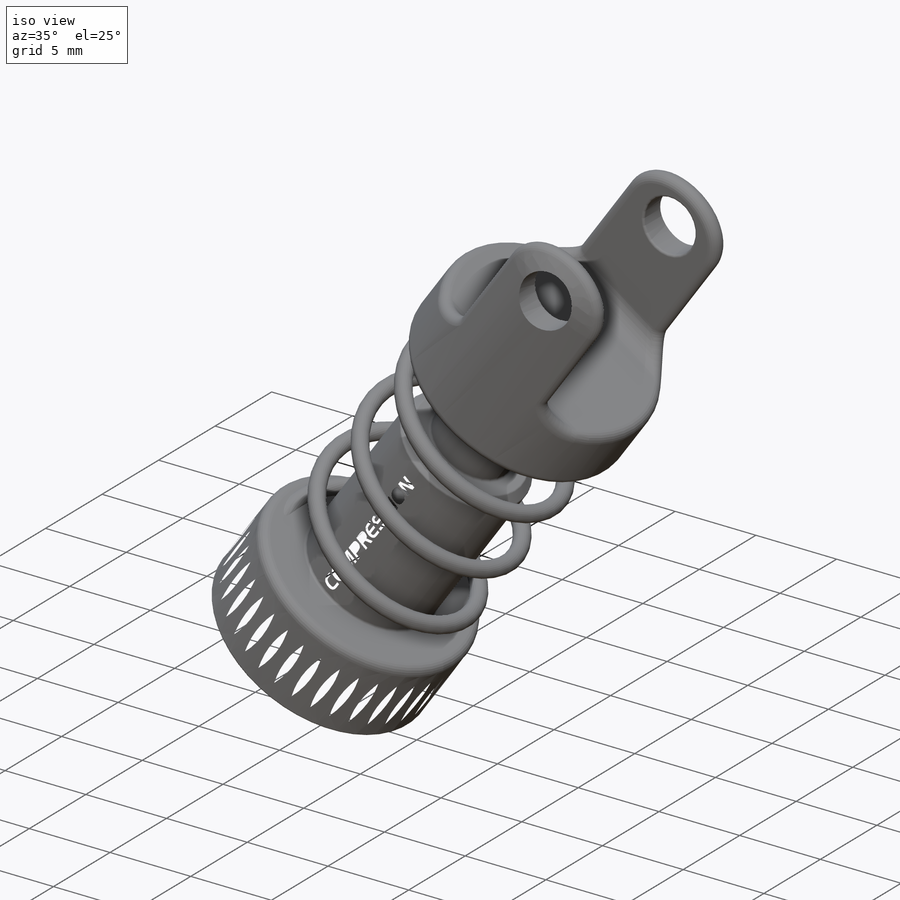
[diagram: iso view]
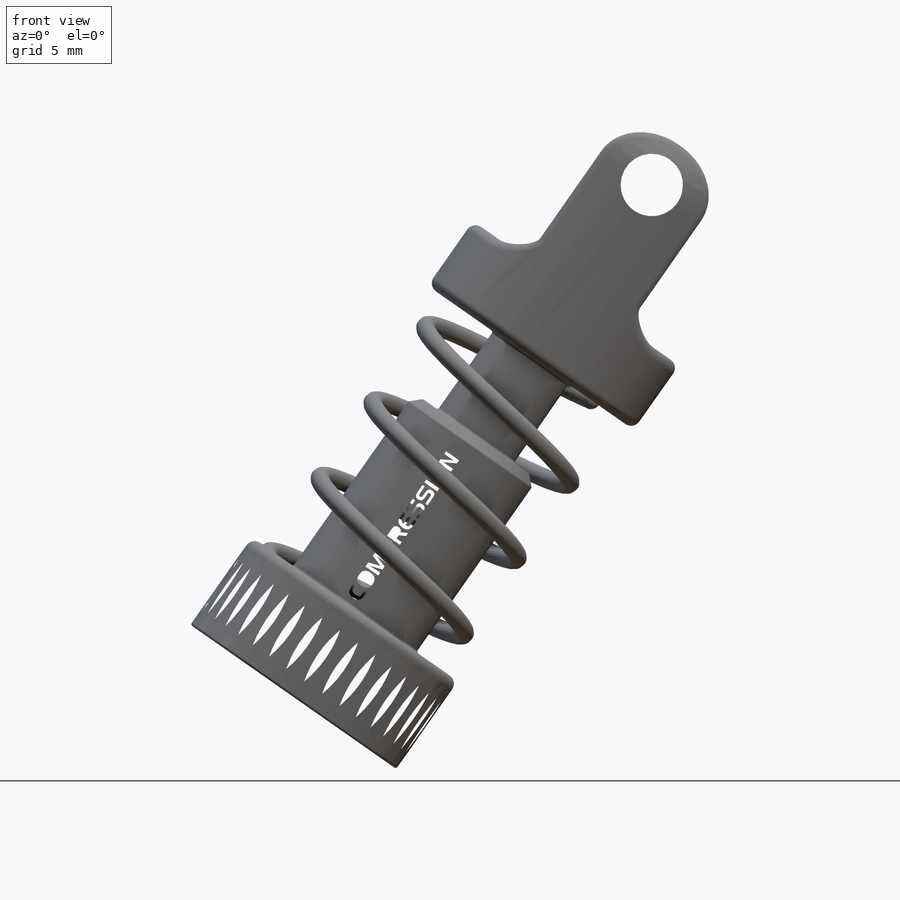
[diagram: front view]
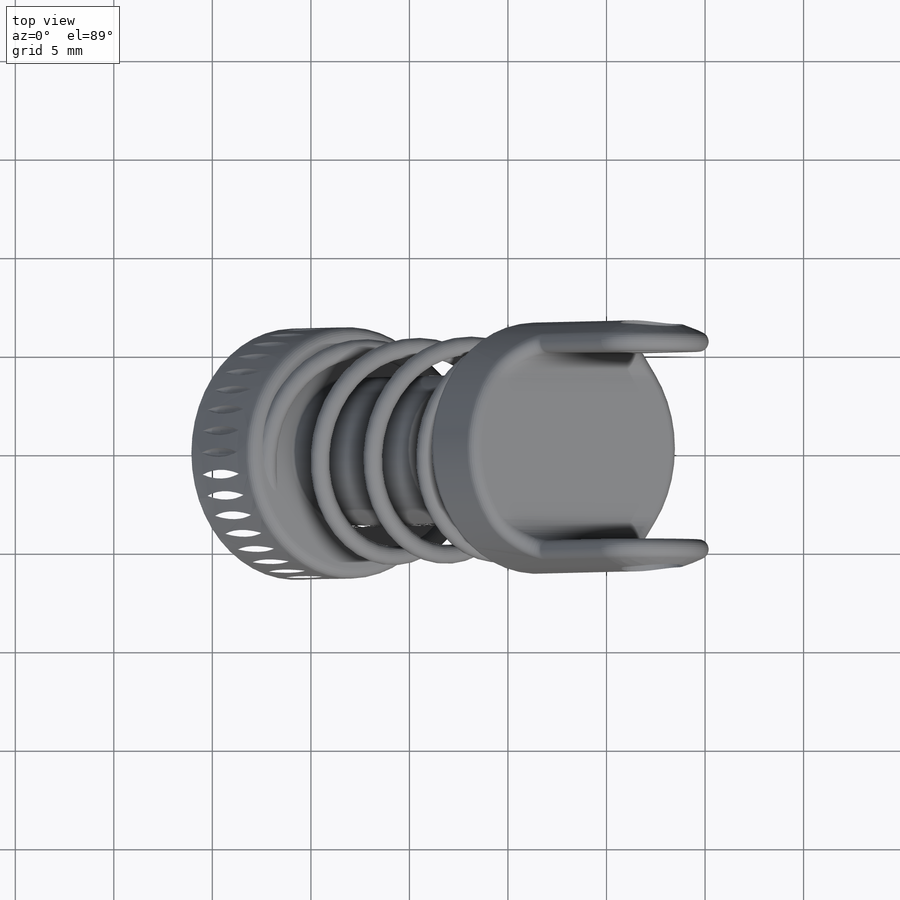
[diagram: top view]
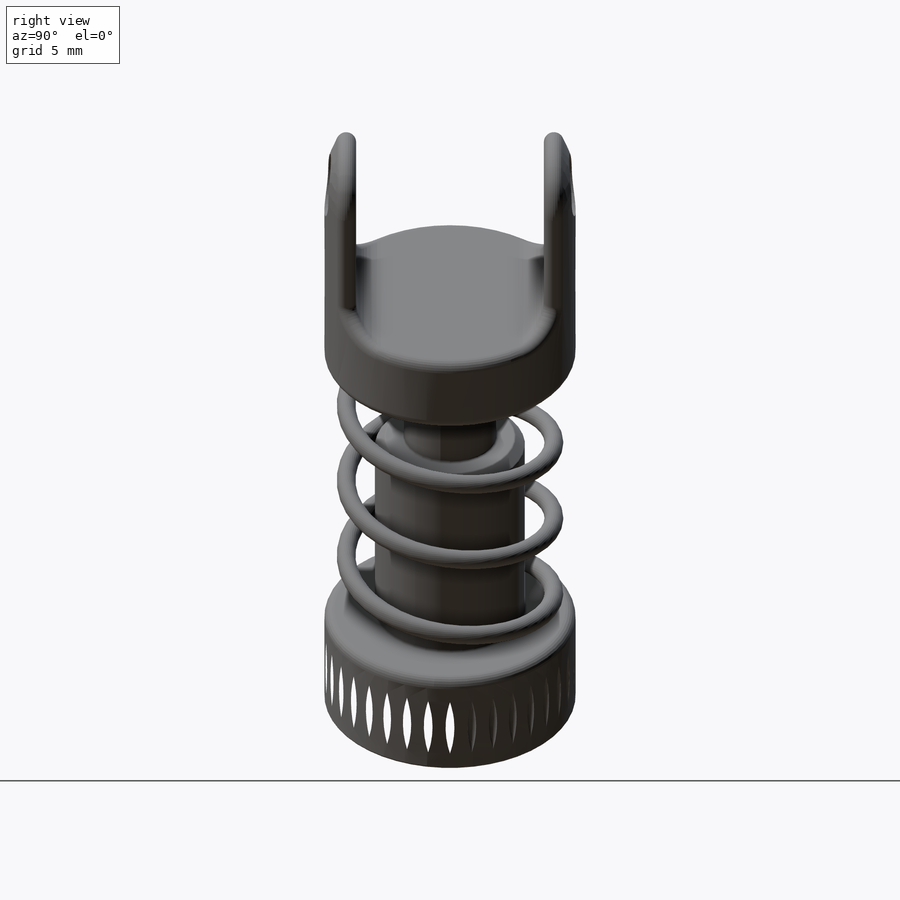
[diagram: right view]
SOLIDWORKS PART (.sldprt)
format: sldprt  version: not decoded by parser v0  size: 1,154,048 bytes
history: native  units: mm
features: sketch x8, fillet x4, revolve x2, cut_extrude x2, material x1, chamfer x1, helix x1, plane x1, sweep x1, cut_revolve x1, pattern_circular x1, extrude x1 (+11 scaffold rows collapsed)
feature tree (35):
  scaffold x11  (default folders/planes/origin — collapsed)
  material  "Material <not specified>"
  sketch  "Sketch1"
  revolve  "Revolve1"  Angle=360deg
  sketch  "Sketch2"
  cut_extrude  "Cut-Extrude1"  Depth=9.525mm
  sketch  "Sketch3"  dims[D1=3.175mm]
  cut_extrude  "Cut-Extrude2"  [1 undecoded]
  fillet  "Fillet1"  Radius=1.27mm
  fillet  "Fillet2"  Radius=0.508mm
  chamfer  "Chamfer1"  Distance=0.508mm Angle=45deg
  sketch  "Sketch5"
  helix  "Helix/Spiral1"  Pitch=16.35mm
  plane  "Plane1"
  sketch  "Sketch7"  dims[D1=~0.951074mm]
  sweep  "Sweep1"
  sketch  "Sketch8"  dims[D1=0.0mm]
  revolve  "Revolve2"  Angle=306deg
  fillet  "Fillet3"  Radius=0.508mm
  fillet  "Fillet4"  Radius=0.127mm
  sketch  "Sketch9"  dims[D1=3.175mm]
  cut_revolve  "Cut-Revolve1"  Angle=360deg
  pattern_circular  "CirPattern1"  Count=36 Angle=360deg
  sketch  "Sketch10"
  extrude  "Boss-Extrude1"  Depth=0.0508mm
decode coverage: 16 of 22 modeling features carry decoded parameters
note: ~ marks probable driven/reference dimensions
note: 1 parameter value undecoded
note: suppression state not decoded; provenance and decode notes live in map.json
